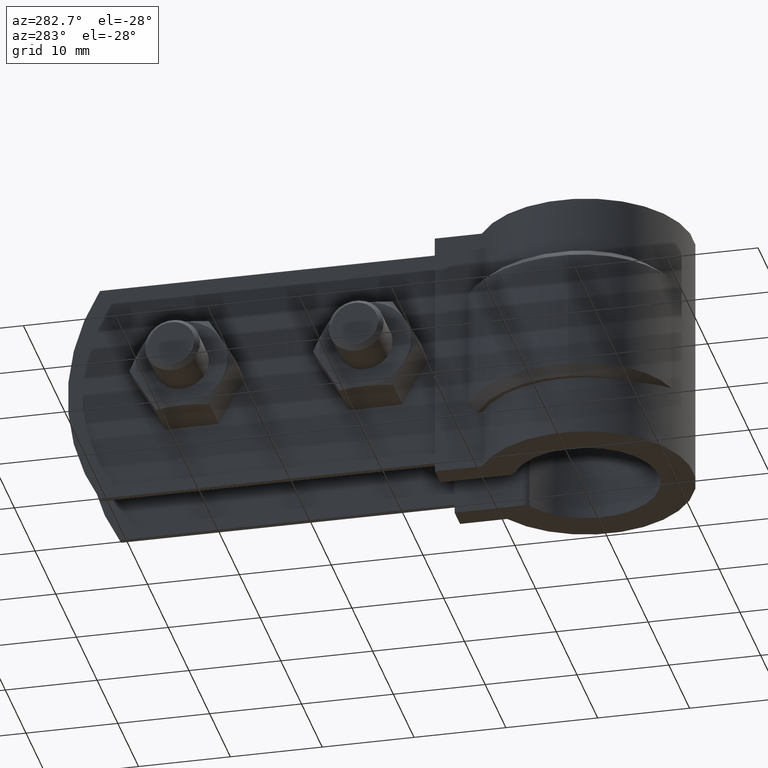
[diagram: clean part render]
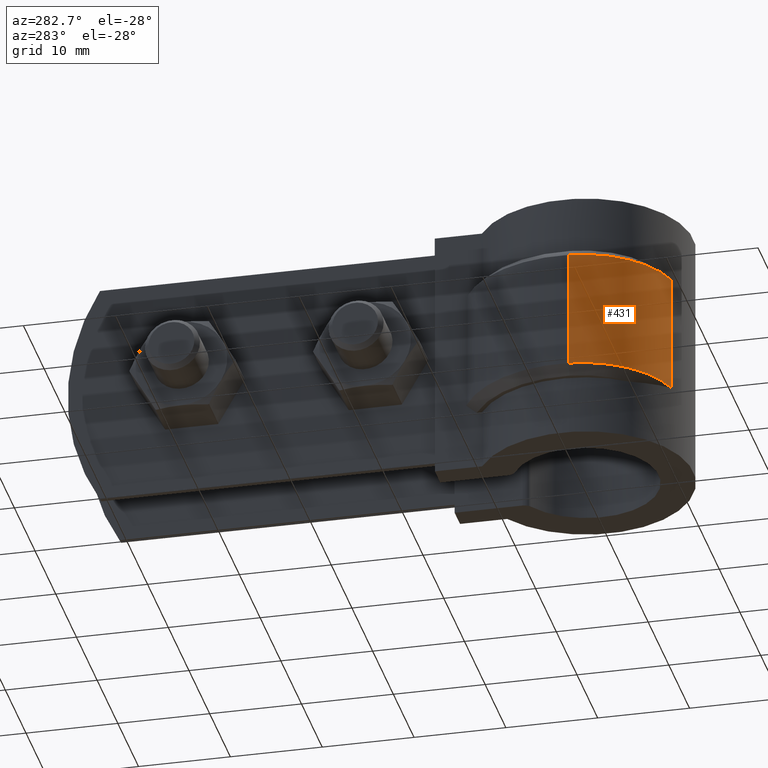
[diagram: same view with one face highlighted and labeled with its STEP entity id]
A machine part, auxiliary view. The second image highlights one B-rep face of the part: STEP entity #431.
In plain terms, the highlighted cylindrical surface (partial cylindrical patch) has radius 10.6 mm, axis along (0, 0, -1).
Its self-contained STEP definition (entity closure, byte-faithful):
#431 = ADVANCED_FACE( '', ( #752 ), #753, .T. );
#752 = FACE_OUTER_BOUND( '', #1738, .T. );
#753 = CYLINDRICAL_SURFACE( '', #1739, 10.6000000000000 );
#1738 = EDGE_LOOP( '', ( #3814, #3815, #3816, #3817 ) );
#1739 = AXIS2_PLACEMENT_3D( '', #3818, #3819, #3820 );
#3814 = ORIENTED_EDGE( '', *, *, #4636, .T. );
#3815 = ORIENTED_EDGE( '', *, *, #4668, .T. );
#3816 = ORIENTED_EDGE( '', *, *, #4733, .F. );
#3817 = ORIENTED_EDGE( '', *, *, #4664, .T. );
#3818 = CARTESIAN_POINT( '', ( -2.57725144291354, -0.199999999999999, -20.0000000000000 ) );
#3819 = DIRECTION( '', ( 0.000000000000000, 0.000000000000000, -1.00000000000000 ) );
#3820 = DIRECTION( '', ( -0.386803185437998, 0.922162293598593, 0.000000000000000 ) );
#4636 = EDGE_CURVE( '', #5330, #5328, #5331, .T. );
#4664 = EDGE_CURVE( '', #5370, #5330, #5374, .T. );
#4668 = EDGE_CURVE( '', #5328, #5378, #5380, .F. );
#4733 = EDGE_CURVE( '', #5370, #5378, #5477, .T. );
#5328 = VERTEX_POINT( '', #7286 );
#5330 = VERTEX_POINT( '', #7295 );
#5331 = LINE( '', #7296, #7297 );
#5370 = VERTEX_POINT( '', #7367 );
#5374 = CIRCLE( '', #7372, 10.6000000000000 );
#5378 = VERTEX_POINT( '', #7376 );
#5380 = CIRCLE( '', #7379, 10.6000000000000 );
#5477 = LINE( '', #7800, #7801 );
#7286 = CARTESIAN_POINT( '', ( -5.17424711952815, -10.4769457260241, -6.00000000000000 ) );
#7295 = CARTESIAN_POINT( '', ( -5.17424711952815, -10.4769457260241, -19.0000000000000 ) );
#7296 = CARTESIAN_POINT( '', ( -5.17424711952815, -10.4769457260241, -12.5000000000000 ) );
#7297 = VECTOR( '', #8544, 1000.00000000000 );
#7367 = CARTESIAN_POINT( '', ( -13.1454778625978, -1.02011605415861, -19.0000000000000 ) );
#7372 = AXIS2_PLACEMENT_3D( '', #8582, #8583, #8584 );
#7376 = CARTESIAN_POINT( '', ( -13.1454778625978, -1.02011605415861, -6.00000000000000 ) );
#7379 = AXIS2_PLACEMENT_3D( '', #8592, #8593, #8594 );
#7800 = CARTESIAN_POINT( '', ( -13.1454778625978, -1.02011605415861, -20.0000000000000 ) );
#7801 = VECTOR( '', #8655, 1000.00000000000 );
#8544 = DIRECTION( '', ( 0.000000000000000, 0.000000000000000, 1.00000000000000 ) );
#8582 = CARTESIAN_POINT( '', ( -2.57725144291354, -0.199999999999999, -19.0000000000000 ) );
#8583 = DIRECTION( '', ( 0.000000000000000, 0.000000000000000, 1.00000000000000 ) );
#8584 = DIRECTION( '', ( 1.00000000000000, 0.000000000000000, 0.000000000000000 ) );
#8592 = CARTESIAN_POINT( '', ( -2.57725144291354, -0.199999999999999, -6.00000000000000 ) );
#8593 = DIRECTION( '', ( 0.000000000000000, 0.000000000000000, 1.00000000000000 ) );
#8594 = DIRECTION( '', ( 1.00000000000000, 0.000000000000000, 0.000000000000000 ) );
#8655 = DIRECTION( '', ( 0.000000000000000, 0.000000000000000, 1.00000000000000 ) );